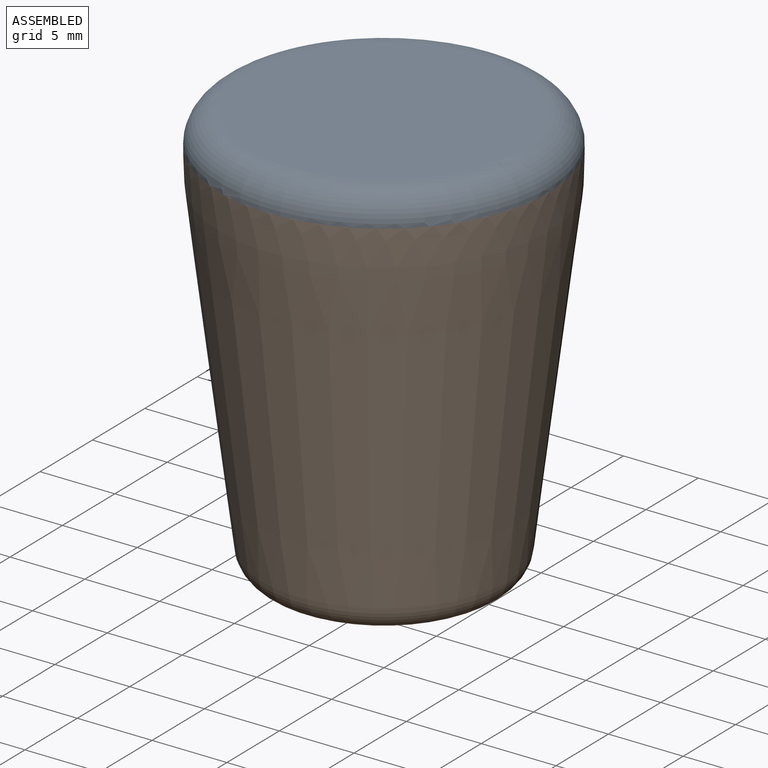
[diagram: assembled view]
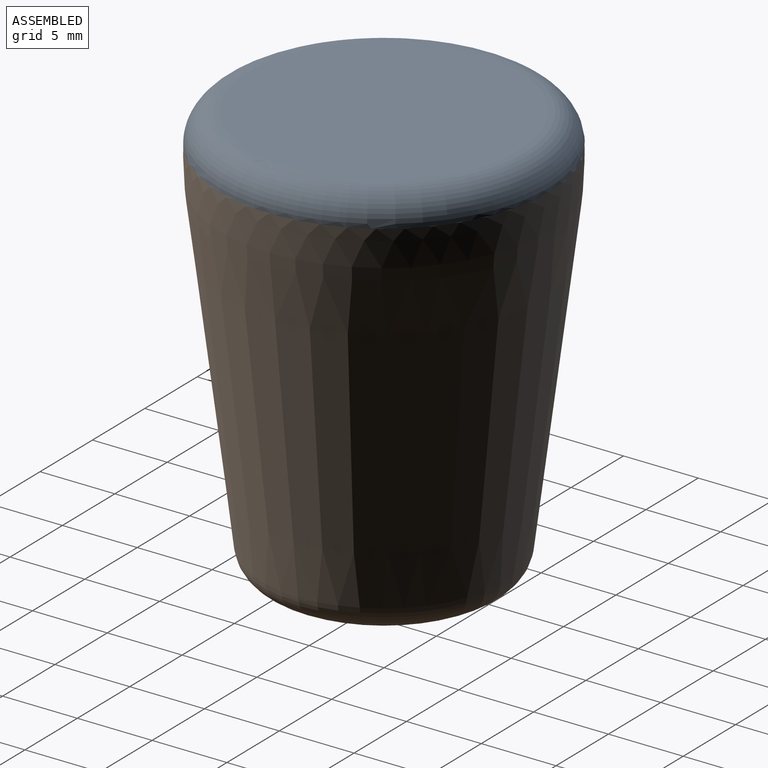
[diagram: assembled view, second angle]
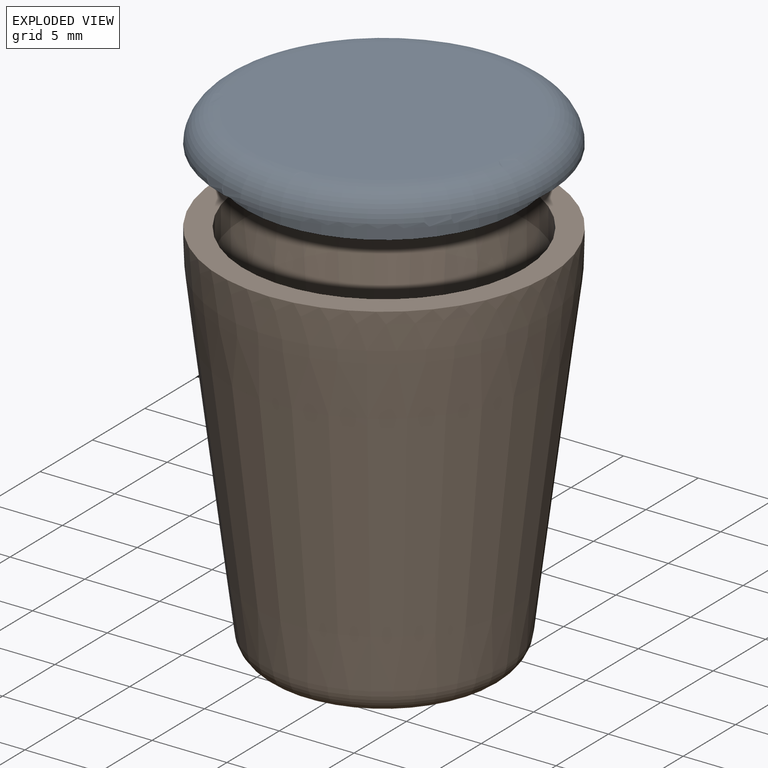
[diagram: exploded view]
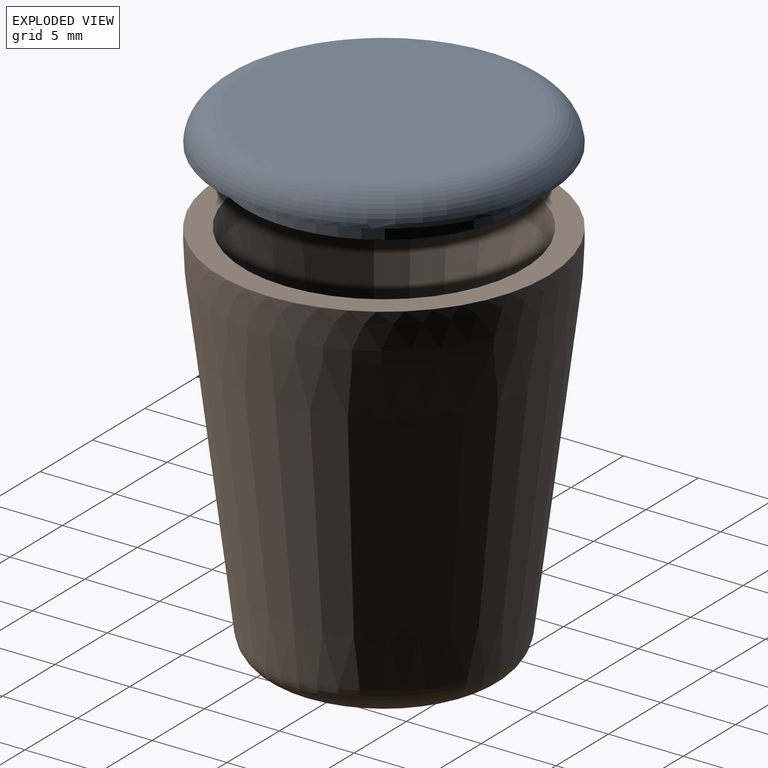
[diagram: exploded view, second angle]
ASSEMBLY  parts=2 mates=2
PART A: 5 faces, bbox 23.8x3.5x23.8 mm
  f0: cylinder r=9.25mm len=18.5mm, axis (0,1,0), area 87.2mm2, adj f1,f3
  f1: plane 18.5x18.5mm, normal (0,1,0), area 268.8mm2, adj f0
  f2: plane 18x18mm, normal (0,-1,0), area 254.5mm2, adj f4
  f3: plane 22x22mm, normal (0,1,0), area 111.3mm2, adj f0,f4
  f4: torus R=9mm, axis (0,-1,0), area 202.8mm2, adj f2,f3
PART B: 11 faces, bbox 22x22x26 mm
  f0: cone r=8.22mm half-angle=7.1deg, axis (0,0,-1), area 1268.3mm2, adj f1,f10
  f1: torus R=6.23mm, axis (0,0,-1), area 135.3mm2, adj f0,f2
  f2: plane 12.47x12.47mm, normal (0,0,1), area 71.8mm2, adj f1,f6
  f3: plane 9.64x9.64mm, normal (0,0,-1), area 22.8mm2, adj f4,f6
  f4: torus R=4.82mm, axis (0,0,-1), area 109.7mm2, adj f3,f5
  f5: cone r=6.81mm half-angle=7.1deg, axis (0,0,-1), area 1058.7mm2, adj f4,f7
  f6: cylinder r=4mm len=8mm, axis (0,0,1), area 40.2mm2, adj f2,f3
  f7: cylinder r=9.39mm len=18.78mm, axis (0,0,1), area 118mm2, adj f5,f9
  f8: cylinder r=11mm len=22mm, axis (0,0,1), area 52.2mm2, adj f9,f10
  f9: plane 22x22mm, normal (0,0,-1), area 103.3mm2, adj f7,f8
  f10: revolved ~22x22mm, area 342.2mm2, adj f0,f8
PLACE A rot(axis=(-0.99,0.09,-0.09),90.5deg) t=(0,0,24.5)mm
PLACE B rot(axis=(0,1,0),180deg) t=(0,0,24)mm
MATE cylindrical B.f0 <-> A.f0  axis (0,0,1) through (0,0,26)mm
MATE planar B.f0 <-> A.f4  axis (0,0,1) through (0,0,26)mm
